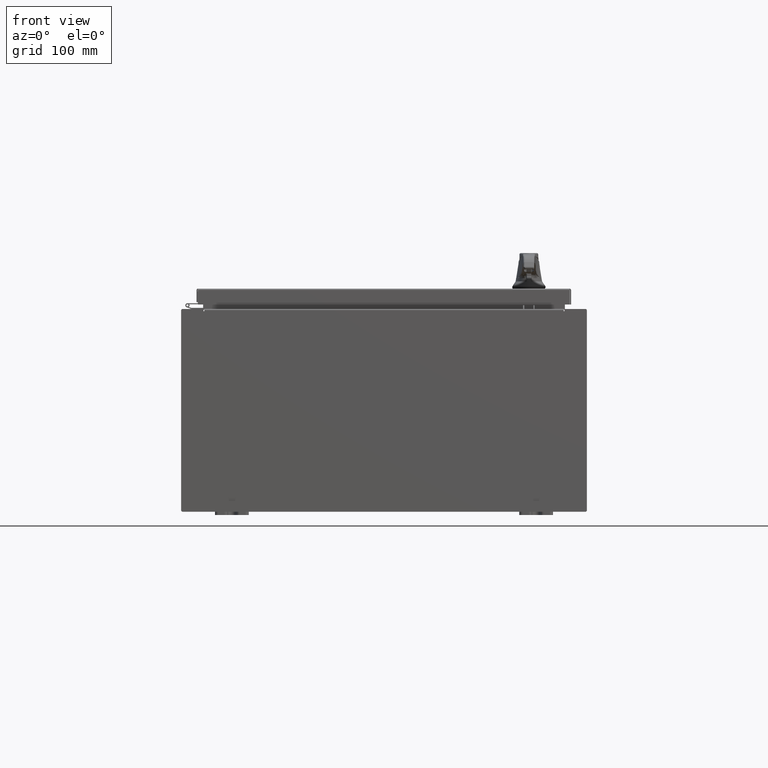
[diagram: clean part render]
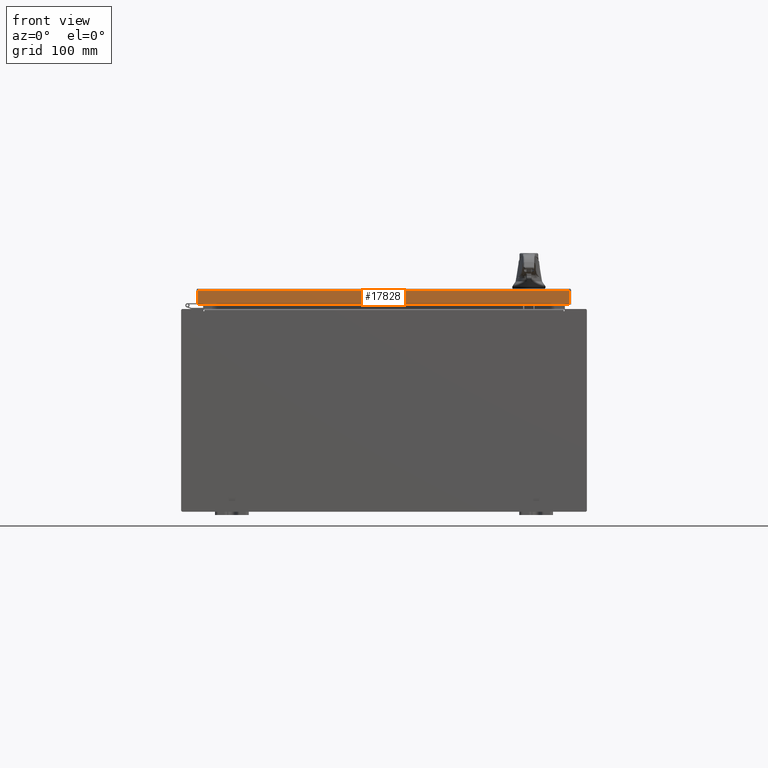
[diagram: same view with one face highlighted and labeled with its STEP entity id]
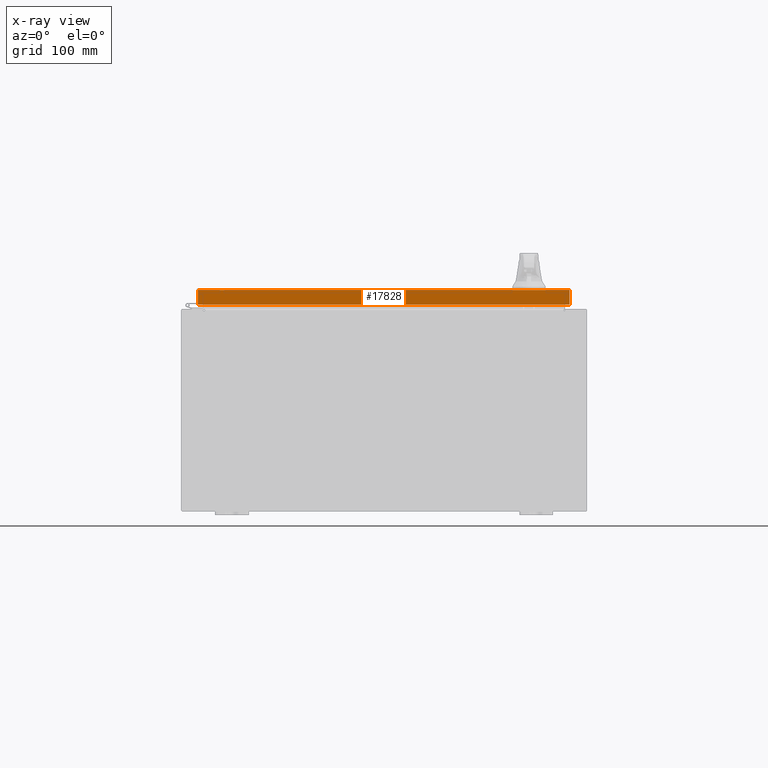
[diagram: x-ray of the same camera — body ghosted, the highlighted face saturated]
A machine part, front view. The second image highlights one B-rep face of the part: STEP entity #17828.
The next image is the same camera in x-ray: the body ghosted, the highlighted face saturated — about 0% of this face is hidden behind the body in this view.
In plain terms, the highlighted planar face has unit normal (0, 1, -0).
Its self-contained STEP definition (entity closure, byte-faithful):
#5277 = DIRECTION ( 'NONE',  ( -1.000000000000000000, 9.864047639156033700E-017, 1.233005954894504400E-016 ) ) ;
#6190 = CARTESIAN_POINT ( 'NONE',  ( 11.07799999999999900, -14.09400000000000100, -0.08770000000000226200 ) ) ;
#8082 = CARTESIAN_POINT ( 'NONE',  ( -1.390238874262646700E-015, -14.09399999999999900, 3.595274007335028100E-014 ) ) ;
#9605 = CARTESIAN_POINT ( 'NONE',  ( -10.98915786437626700, -14.09400000000000100, -0.9376999999999970900 ) ) ;
#12352 = EDGE_CURVE ( 'NONE', #35072, #60179, #102323, .T. ) ;
#12784 = CARTESIAN_POINT ( 'NONE',  ( 10.98915786437626900, -14.09400000000000100, -0.07469999999999980800 ) ) ;
#17244 = DIRECTION ( 'NONE',  ( 0.0000000000000000000, 2.532419924601866100E-015, 1.000000000000000000 ) ) ;
#17828 = ADVANCED_FACE ( 'NONE', ( #22959 ), #62917, .F. ) ;
#22959 = FACE_OUTER_BOUND ( 'NONE', #43930, .T. ) ;
#26733 = CARTESIAN_POINT ( 'NONE',  ( -10.98915786437626900, -14.09399999999999900, 3.595274007335028100E-014 ) ) ;
#31793 = CARTESIAN_POINT ( 'NONE',  ( 10.98915786437626900, -14.09400000000000300, -0.9376999999999997600 ) ) ;
#34861 = EDGE_CURVE ( 'NONE', #111564, #80462, #35246, .T. ) ;
#35072 = VERTEX_POINT ( 'NONE', #57857 ) ;
#35246 = LINE ( 'NONE', #114867, #46765 ) ;
#36736 = ORIENTED_EDGE ( 'NONE', *, *, #34861, .F. ) ;
#43930 = EDGE_LOOP ( 'NONE', ( #51901, #97457, #36736, #67550 ) ) ;
#46765 = VECTOR ( 'NONE', #5277, 39.37007874015748100 ) ;
#49035 = EDGE_CURVE ( 'NONE', #60179, #111564, #117187, .T. ) ;
#49489 = CARTESIAN_POINT ( 'NONE',  ( 10.98915786437624400, -14.09400000000000100, -0.08770000000000226200 ) ) ;
#50004 = DIRECTION ( 'NONE',  ( 0.0000000000000000000, -2.532419924601866100E-015, -1.000000000000000000 ) ) ;
#51901 = ORIENTED_EDGE ( 'NONE', *, *, #12352, .F. ) ;
#52293 = LINE ( 'NONE', #26733, #98106 ) ;
#54005 = DIRECTION ( 'NONE',  ( 0.0000000000000000000, -2.532419924601866100E-015, -1.000000000000000000 ) ) ;
#57857 = CARTESIAN_POINT ( 'NONE',  ( -10.98915786437626700, -14.09399999999999900, -0.08770000000000226200 ) ) ;
#60179 = VERTEX_POINT ( 'NONE', #49489 ) ;
#62917 = PLANE ( 'NONE',  #93541 ) ;
#67550 = ORIENTED_EDGE ( 'NONE', *, *, #49035, .F. ) ;
#68548 = VECTOR ( 'NONE', #50004, 39.37007874015748100 ) ;
#72143 = DIRECTION ( 'NONE',  ( 9.864047639156001700E-017, 1.000000000000000000, -2.532419924601866100E-015 ) ) ;
#80462 = VERTEX_POINT ( 'NONE', #9605 ) ;
#93541 = AXIS2_PLACEMENT_3D ( 'NONE', #8082, #72143, #17244 ) ;
#96131 = EDGE_CURVE ( 'NONE', #35072, #80462, #52293, .T. ) ;
#96604 = VECTOR ( 'NONE', #106231, 39.37007874015748100 ) ;
#97457 = ORIENTED_EDGE ( 'NONE', *, *, #96131, .T. ) ;
#98106 = VECTOR ( 'NONE', #54005, 39.37007874015748100 ) ;
#102323 = LINE ( 'NONE', #6190, #96604 ) ;
#106231 = DIRECTION ( 'NONE',  ( 1.000000000000000000, -9.864047639156004100E-017, -7.444398091725593800E-046 ) ) ;
#111564 = VERTEX_POINT ( 'NONE', #31793 ) ;
#114867 = CARTESIAN_POINT ( 'NONE',  ( 11.07799999999999900, -14.09400000000000300, -0.9376999999999997600 ) ) ;
#117187 = LINE ( 'NONE', #12784, #68548 ) ;